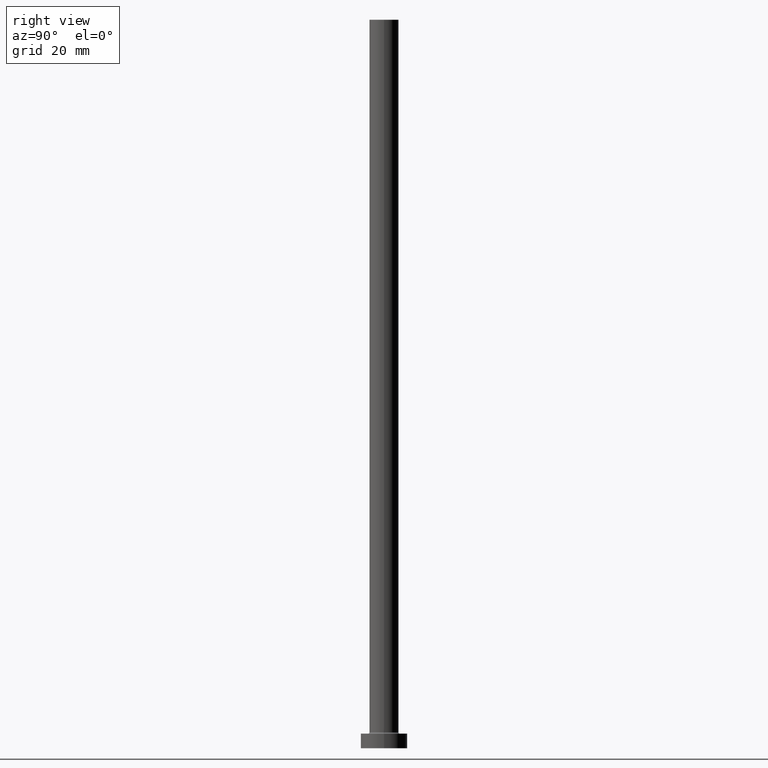
[diagram: clean part render]
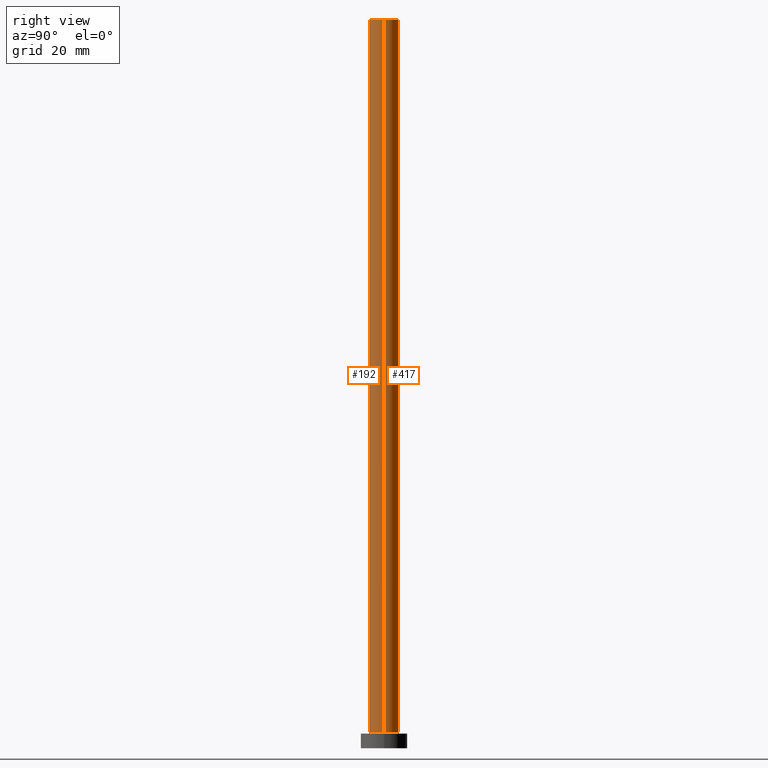
[diagram: same view with one multi-face feature highlighted, each face labeled with its STEP entity id]
A machine part, right view. The highlighted faces form ONE feature: a constant-radius fillet chain: 2 tangent blend faces with common blend radius 5 mm. The faces share edges in the B-rep.
Their STEP definitions:
[1] entity #417 (Cylinder):
#37 = DIRECTION ( 'NONE',  ( -1.000000000000000000, 0.000000000000000000, 0.000000000000000000 ) ) ;
#43 = ORIENTED_EDGE ( 'NONE', *, *, #61, .F. ) ;
#49 = EDGE_CURVE ( 'NONE', #288, #130, #198, .T. ) ;
#50 = DIRECTION ( 'NONE',  ( 0.000000000000000000, 0.000000000000000000, 1.000000000000000000 ) ) ;
#61 = EDGE_CURVE ( 'NONE', #254, #156, #74, .T. ) ;
#71 = AXIS2_PLACEMENT_3D ( 'NONE', #169, #50, #349 ) ;
#74 = LINE ( 'NONE', #461, #216 ) ;
#76 = DIRECTION ( 'NONE',  ( -0.000000000000000000, -0.000000000000000000, -1.000000000000000000 ) ) ;
#104 = DIRECTION ( 'NONE',  ( 1.000000000000000000, 0.000000000000000000, 0.000000000000000000 ) ) ;
#109 = CIRCLE ( 'NONE', #277, 5.000000000000000000 ) ;
#116 = DIRECTION ( 'NONE',  ( 0.000000000000000000, 0.000000000000000000, 1.000000000000000000 ) ) ;
#117 = DIRECTION ( 'NONE',  ( -0.000000000000000000, -0.000000000000000000, -1.000000000000000000 ) ) ;
#129 = EDGE_CURVE ( 'NONE', #288, #254, #285, .T. ) ;
#130 = VERTEX_POINT ( 'NONE', #452 ) ;
#140 = AXIS2_PLACEMENT_3D ( 'NONE', #333, #76, #37 ) ;
#142 = ORIENTED_EDGE ( 'NONE', *, *, #129, .F. ) ;
#154 = CARTESIAN_POINT ( 'NONE',  ( 0.000000000000000000, 0.000000000000000000, 5.500000000000005329 ) ) ;
#156 = VERTEX_POINT ( 'NONE', #283 ) ;
#169 = CARTESIAN_POINT ( 'NONE',  ( 0.000000000000000000, 0.000000000000000000, 250.0000000000000000 ) ) ;
#186 = CYLINDRICAL_SURFACE ( 'NONE', #140, 5.000000000000000000 ) ;
#191 = CARTESIAN_POINT ( 'NONE',  ( 5.000000000000000000, 6.123233995736766282E-16, 250.0000000000000000 ) ) ;
#198 = LINE ( 'NONE', #335, #228 ) ;
#216 = VECTOR ( 'NONE', #117, 1000.000000000000000 ) ;
#228 = VECTOR ( 'NONE', #298, 1000.000000000000000 ) ;
#231 = FACE_OUTER_BOUND ( 'NONE', #404, .T. ) ;
#239 = ORIENTED_EDGE ( 'NONE', *, *, #309, .T. ) ;
#242 = CARTESIAN_POINT ( 'NONE',  ( -5.000000000000000000, 0.000000000000000000, 250.0000000000000000 ) ) ;
#254 = VERTEX_POINT ( 'NONE', #242 ) ;
#277 = AXIS2_PLACEMENT_3D ( 'NONE', #154, #116, #104 ) ;
#283 = CARTESIAN_POINT ( 'NONE',  ( -5.000000000000000000, 0.000000000000000000, 5.500000000000005329 ) ) ;
#285 = CIRCLE ( 'NONE', #71, 5.000000000000000000 ) ;
#288 = VERTEX_POINT ( 'NONE', #191 ) ;
#298 = DIRECTION ( 'NONE',  ( -0.000000000000000000, -0.000000000000000000, -1.000000000000000000 ) ) ;
#309 = EDGE_CURVE ( 'NONE', #130, #156, #109, .T. ) ;
#319 = ORIENTED_EDGE ( 'NONE', *, *, #49, .T. ) ;
#333 = CARTESIAN_POINT ( 'NONE',  ( 0.000000000000000000, 0.000000000000000000, 250.0000000000000000 ) ) ;
#335 = CARTESIAN_POINT ( 'NONE',  ( 5.000000000000000000, 6.123233995736766282E-16, 250.0000000000000000 ) ) ;
#349 = DIRECTION ( 'NONE',  ( 1.000000000000000000, 0.000000000000000000, 0.000000000000000000 ) ) ;
#404 = EDGE_LOOP ( 'NONE', ( #142, #319, #239, #43 ) ) ;
#417 = ADVANCED_FACE ( 'NONE', ( #231 ), #186, .T. ) ;
#452 = CARTESIAN_POINT ( 'NONE',  ( 5.000000000000000000, 6.123233995736766282E-16, 5.500000000000005329 ) ) ;
#461 = CARTESIAN_POINT ( 'NONE',  ( -5.000000000000000000, 0.000000000000000000, 250.0000000000000000 ) ) ;
[2] entity #192 (Cylinder):
#28 = EDGE_CURVE ( 'NONE', #254, #288, #255, .T. ) ;
#47 = AXIS2_PLACEMENT_3D ( 'NONE', #243, #315, #377 ) ;
#48 = ORIENTED_EDGE ( 'NONE', *, *, #267, .T. ) ;
#49 = EDGE_CURVE ( 'NONE', #288, #130, #198, .T. ) ;
#61 = EDGE_CURVE ( 'NONE', #254, #156, #74, .T. ) ;
#74 = LINE ( 'NONE', #461, #216 ) ;
#117 = DIRECTION ( 'NONE',  ( -0.000000000000000000, -0.000000000000000000, -1.000000000000000000 ) ) ;
#123 = CARTESIAN_POINT ( 'NONE',  ( 0.000000000000000000, 0.000000000000000000, 250.0000000000000000 ) ) ;
#130 = VERTEX_POINT ( 'NONE', #452 ) ;
#156 = VERTEX_POINT ( 'NONE', #283 ) ;
#166 = ORIENTED_EDGE ( 'NONE', *, *, #61, .T. ) ;
#168 = ORIENTED_EDGE ( 'NONE', *, *, #28, .F. ) ;
#173 = DIRECTION ( 'NONE',  ( -1.000000000000000000, 0.000000000000000000, 0.000000000000000000 ) ) ;
#176 = CYLINDRICAL_SURFACE ( 'NONE', #337, 5.000000000000000000 ) ;
#191 = CARTESIAN_POINT ( 'NONE',  ( 5.000000000000000000, 6.123233995736766282E-16, 250.0000000000000000 ) ) ;
#192 = ADVANCED_FACE ( 'NONE', ( #411 ), #176, .T. ) ;
#195 = DIRECTION ( 'NONE',  ( 0.000000000000000000, 0.000000000000000000, 1.000000000000000000 ) ) ;
#198 = LINE ( 'NONE', #335, #228 ) ;
#216 = VECTOR ( 'NONE', #117, 1000.000000000000000 ) ;
#228 = VECTOR ( 'NONE', #298, 1000.000000000000000 ) ;
#242 = CARTESIAN_POINT ( 'NONE',  ( -5.000000000000000000, 0.000000000000000000, 250.0000000000000000 ) ) ;
#243 = CARTESIAN_POINT ( 'NONE',  ( 0.000000000000000000, 0.000000000000000000, 5.500000000000005329 ) ) ;
#246 = CARTESIAN_POINT ( 'NONE',  ( 0.000000000000000000, 0.000000000000000000, 250.0000000000000000 ) ) ;
#254 = VERTEX_POINT ( 'NONE', #242 ) ;
#255 = CIRCLE ( 'NONE', #380, 5.000000000000000000 ) ;
#267 = EDGE_CURVE ( 'NONE', #156, #130, #459, .T. ) ;
#283 = CARTESIAN_POINT ( 'NONE',  ( -5.000000000000000000, 0.000000000000000000, 5.500000000000005329 ) ) ;
#288 = VERTEX_POINT ( 'NONE', #191 ) ;
#298 = DIRECTION ( 'NONE',  ( -0.000000000000000000, -0.000000000000000000, -1.000000000000000000 ) ) ;
#315 = DIRECTION ( 'NONE',  ( 0.000000000000000000, 0.000000000000000000, 1.000000000000000000 ) ) ;
#322 = ORIENTED_EDGE ( 'NONE', *, *, #49, .F. ) ;
#335 = CARTESIAN_POINT ( 'NONE',  ( 5.000000000000000000, 6.123233995736766282E-16, 250.0000000000000000 ) ) ;
#336 = EDGE_LOOP ( 'NONE', ( #322, #168, #166, #48 ) ) ;
#337 = AXIS2_PLACEMENT_3D ( 'NONE', #246, #442, #173 ) ;
#377 = DIRECTION ( 'NONE',  ( 1.000000000000000000, 0.000000000000000000, 0.000000000000000000 ) ) ;
#380 = AXIS2_PLACEMENT_3D ( 'NONE', #123, #195, #438 ) ;
#411 = FACE_OUTER_BOUND ( 'NONE', #336, .T. ) ;
#438 = DIRECTION ( 'NONE',  ( 1.000000000000000000, 0.000000000000000000, 0.000000000000000000 ) ) ;
#442 = DIRECTION ( 'NONE',  ( -0.000000000000000000, -0.000000000000000000, -1.000000000000000000 ) ) ;
#452 = CARTESIAN_POINT ( 'NONE',  ( 5.000000000000000000, 6.123233995736766282E-16, 5.500000000000005329 ) ) ;
#459 = CIRCLE ( 'NONE', #47, 5.000000000000000000 ) ;
#461 = CARTESIAN_POINT ( 'NONE',  ( -5.000000000000000000, 0.000000000000000000, 250.0000000000000000 ) ) ;